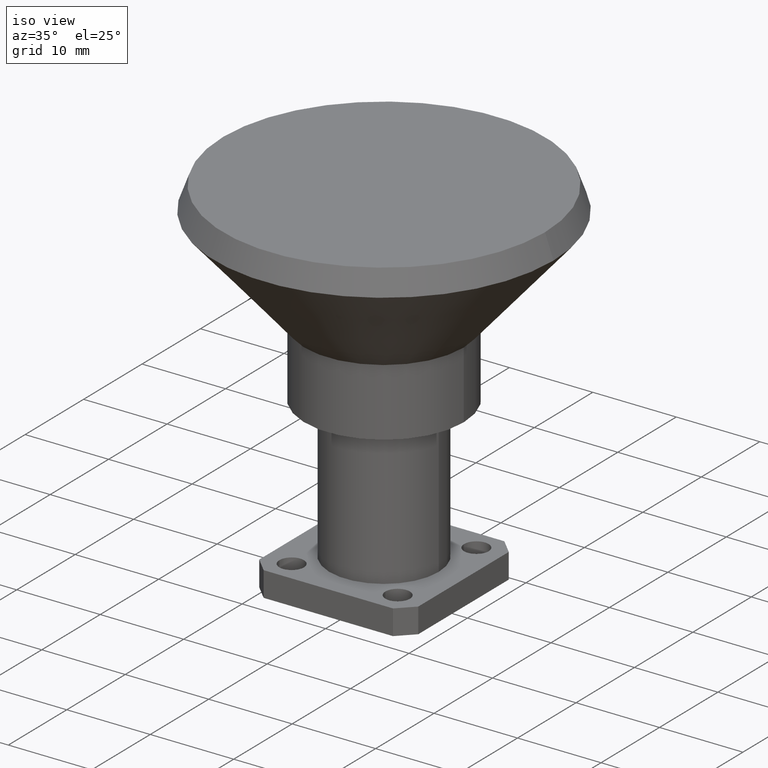
[diagram: clean part render]
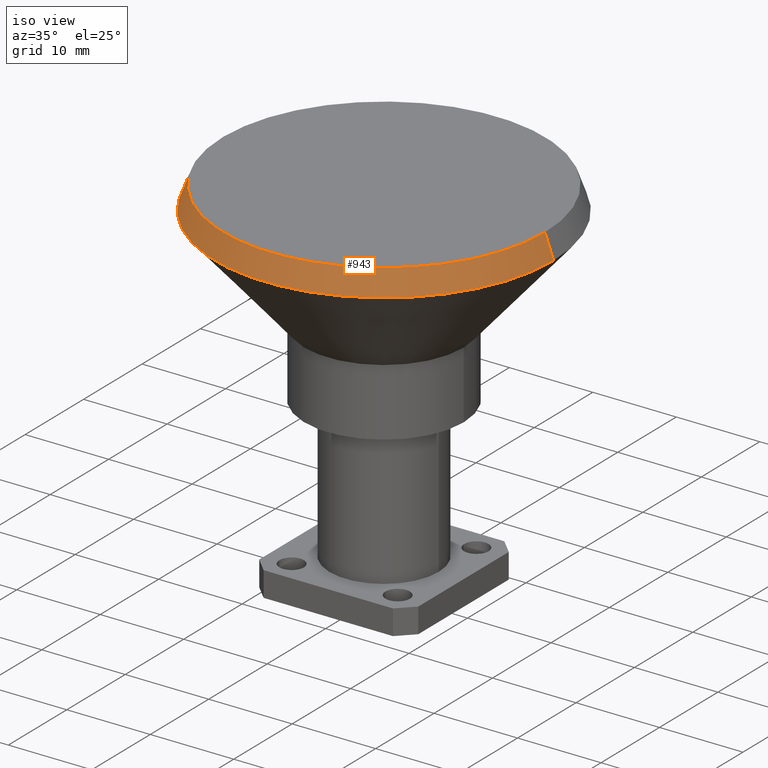
[diagram: same view with one face highlighted and labeled with its STEP entity id]
A machine part, iso view. The second image highlights one B-rep face of the part: STEP entity #943.
In plain terms, the highlighted conical surface has half-angle 20 deg.
Its self-contained STEP definition (entity closure, byte-faithful):
#3 = CIRCLE ( 'NONE', #694, 0.7594999999999996200 ) ;
#34 = EDGE_CURVE ( 'NONE', #325, #166, #776, .T. ) ;
#37 = DIRECTION ( 'NONE',  ( -0.3420201433256689300, 0.0000000000000000000, -0.9396926207859082100 ) ) ;
#64 = ORIENTED_EDGE ( 'NONE', *, *, #233, .F. ) ;
#74 = DIRECTION ( 'NONE',  ( -1.224646799147354900E-016, 0.0000000000000000000, -1.000000000000000000 ) ) ;
#100 = ORIENTED_EDGE ( 'NONE', *, *, #827, .F. ) ;
#166 = VERTEX_POINT ( 'NONE', #634 ) ;
#200 = AXIS2_PLACEMENT_3D ( 'NONE', #394, #74, #419 ) ;
#204 = CARTESIAN_POINT ( 'NONE',  ( -0.7594999999999994000, 0.0000000000000000000, -2.935375915182835100E-012 ) ) ;
#221 = ORIENTED_EDGE ( 'NONE', *, *, #34, .F. ) ;
#233 = EDGE_CURVE ( 'NONE', #945, #325, #693, .T. ) ;
#247 = ORIENTED_EDGE ( 'NONE', *, *, #379, .T. ) ;
#260 = CARTESIAN_POINT ( 'NONE',  ( 2.083124205346053000E-016, 0.0000000000000000000, -2.935468927107230100E-012 ) ) ;
#280 = DIRECTION ( 'NONE',  ( -1.000000000000000000, 0.0000000000000000000, 1.224646799144300100E-016 ) ) ;
#325 = VERTEX_POINT ( 'NONE', #516 ) ;
#333 = DIRECTION ( 'NONE',  ( 1.000000000000000000, 0.0000000000000000000, -1.224646799144300100E-016 ) ) ;
#344 = CARTESIAN_POINT ( 'NONE',  ( 2.083124205346052800E-016, 0.0000000000000000000, -2.935643853991617400E-012 ) ) ;
#354 = DIRECTION ( 'NONE',  ( -1.224646799147354900E-016, 0.0000000000000000000, -1.000000000000000000 ) ) ;
#359 = AXIS2_PLACEMENT_3D ( 'NONE', #344, #354, #280 ) ;
#379 = EDGE_CURVE ( 'NONE', #403, #166, #1012, .T. ) ;
#394 = CARTESIAN_POINT ( 'NONE',  ( 1.948536628247463100E-016, 0.0000000000000000000, -0.1098990967811205400 ) ) ;
#403 = VERTEX_POINT ( 'NONE', #204 ) ;
#419 = DIRECTION ( 'NONE',  ( 1.000000000000000000, 0.0000000000000000000, -1.281354593651155700E-016 ) ) ;
#454 = CARTESIAN_POINT ( 'NONE',  ( -0.7594999999999994000, 0.0000000000000000000, -2.935550842067222400E-012 ) ) ;
#476 = EDGE_LOOP ( 'NONE', ( #64, #100, #247, #221 ) ) ;
#496 = DIRECTION ( 'NONE',  ( 1.224646799147353200E-016, 0.0000000000000000000, 1.000000000000000000 ) ) ;
#516 = CARTESIAN_POINT ( 'NONE',  ( 0.7994999999999998800, 0.0000000000000000000, -0.1098990967811206600 ) ) ;
#545 = CONICAL_SURFACE ( 'NONE', #359, 0.7594999999999996200, 0.3490658503988660600 ) ;
#634 = CARTESIAN_POINT ( 'NONE',  ( -0.7994999999999996600, 9.791051159183086300E-017, -0.1098990967811204500 ) ) ;
#664 = CARTESIAN_POINT ( 'NONE',  ( 0.7594999999999999500, 9.301192439524142400E-017, -2.935736865916012400E-012 ) ) ;
#687 = FACE_OUTER_BOUND ( 'NONE', #476, .T. ) ;
#693 = LINE ( 'NONE', #664, #870 ) ;
#694 = AXIS2_PLACEMENT_3D ( 'NONE', #260, #496, #333 ) ;
#734 = DIRECTION ( 'NONE',  ( 0.3420201433256687700, 4.188538737676994200E-017, -0.9396926207859083200 ) ) ;
#776 = CIRCLE ( 'NONE', #200, 0.7994999999999997700 ) ;
#823 = CARTESIAN_POINT ( 'NONE',  ( 0.7594999999999999500, 9.546121799353612500E-017, -2.935561939031625000E-012 ) ) ;
#827 = EDGE_CURVE ( 'NONE', #403, #945, #3, .T. ) ;
#868 = VECTOR ( 'NONE', #37, 39.37007874015748900 ) ;
#870 = VECTOR ( 'NONE', #734, 39.37007874015748900 ) ;
#943 = ADVANCED_FACE ( 'NONE', ( #687 ), #545, .T. ) ;
#945 = VERTEX_POINT ( 'NONE', #823 ) ;
#1012 = LINE ( 'NONE', #454, #868 ) ;